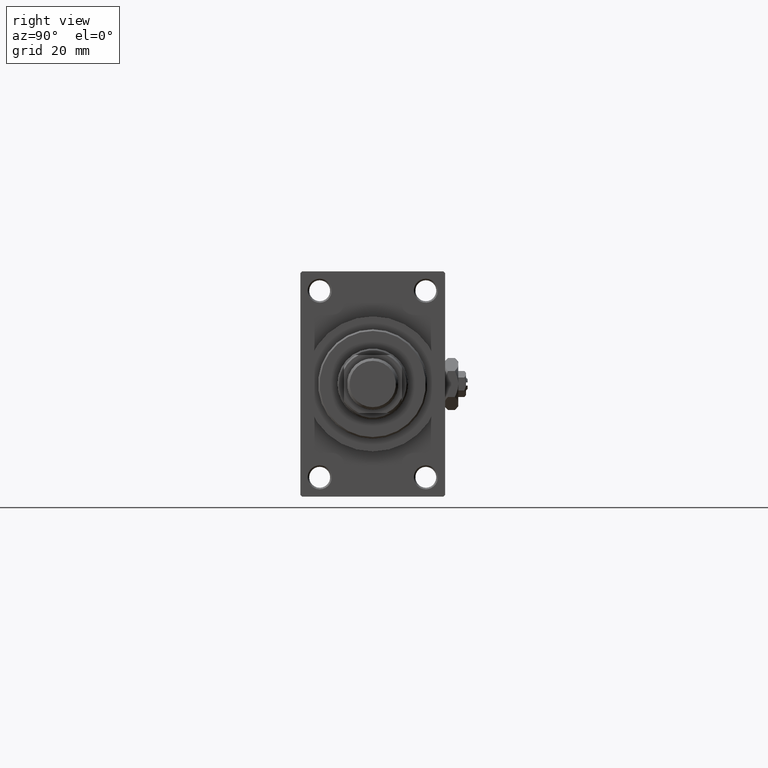
[diagram: clean part render]
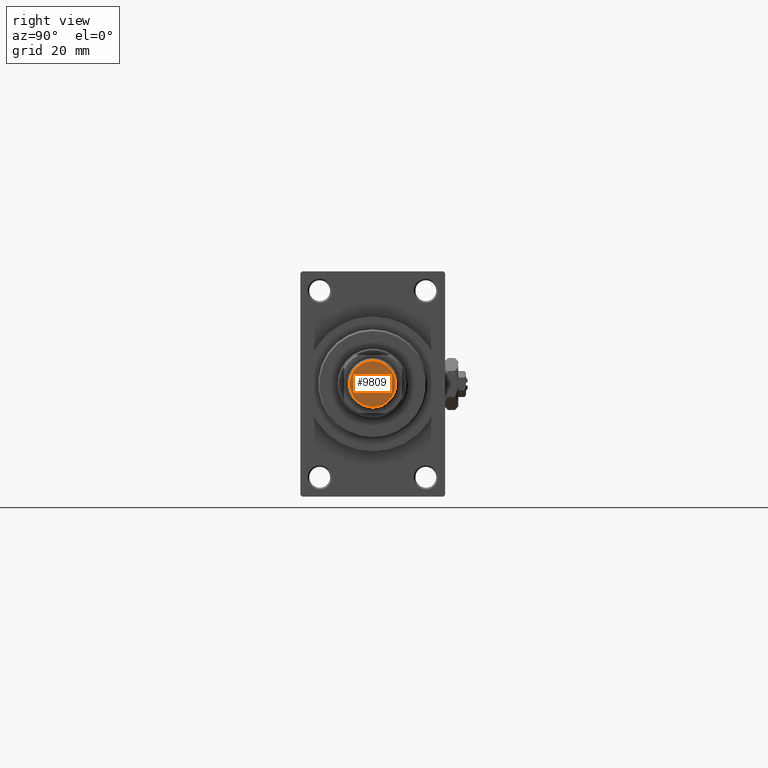
[diagram: same view with one face highlighted and labeled with its STEP entity id]
A machine part, right view. The second image highlights one B-rep face of the part: STEP entity #9809.
In plain terms, the highlighted planar face has unit normal (-1, 0, 0).
Its self-contained STEP definition (entity closure, byte-faithful):
#4118 = VERTEX_POINT ( 'NONE', #39213 ) ;
#6362 = PLANE ( 'NONE',  #34500 ) ;
#6532 = EDGE_CURVE ( 'NONE', #4118, #22604, #40807, .T. ) ;
#8521 = DIRECTION ( 'NONE',  ( 1.000000000000000000, 0.000000000000000000, 0.000000000000000000 ) ) ;
#9809 = ADVANCED_FACE ( 'NONE', ( #43448 ), #6362, .F. ) ;
#10120 = DIRECTION ( 'NONE',  ( 1.000000000000000000, 0.000000000000000000, -0.000000000000000000 ) ) ;
#10689 = AXIS2_PLACEMENT_3D ( 'NONE', #36374, #40391, #28606 ) ;
#12779 = AXIS2_PLACEMENT_3D ( 'NONE', #23809, #43092, #8521 ) ;
#14805 = ORIENTED_EDGE ( 'NONE', *, *, #6532, .T. ) ;
#17890 = CARTESIAN_POINT ( 'NONE',  ( 0.000000000000000000, 0.000000000000000000, 0.000000000000000000 ) ) ;
#19492 = EDGE_CURVE ( 'NONE', #22604, #4118, #39487, .T. ) ;
#22143 = ORIENTED_EDGE ( 'NONE', *, *, #19492, .T. ) ;
#22604 = VERTEX_POINT ( 'NONE', #41544 ) ;
#23809 = CARTESIAN_POINT ( 'NONE',  ( 0.000000000000000000, 0.000000000000000000, 0.000000000000000000 ) ) ;
#25169 = DIRECTION ( 'NONE',  ( 0.000000000000000000, 0.000000000000000000, 1.000000000000000000 ) ) ;
#28606 = DIRECTION ( 'NONE',  ( 1.000000000000000000, 0.000000000000000000, 0.000000000000000000 ) ) ;
#34500 = AXIS2_PLACEMENT_3D ( 'NONE', #17890, #25169, #10120 ) ;
#36374 = CARTESIAN_POINT ( 'NONE',  ( 0.000000000000000000, 0.000000000000000000, 0.000000000000000000 ) ) ;
#39213 = CARTESIAN_POINT ( 'NONE',  ( -7.199999999999987743, 9.307315673519877571E-16, 0.000000000000000000 ) ) ;
#39487 = CIRCLE ( 'NONE', #10689, 7.199999999999987743 ) ;
#40391 = DIRECTION ( 'NONE',  ( -0.000000000000000000, -0.000000000000000000, -1.000000000000000000 ) ) ;
#40807 = CIRCLE ( 'NONE', #12779, 7.199999999999987743 ) ;
#41544 = CARTESIAN_POINT ( 'NONE',  ( 7.199999999999987743, 0.000000000000000000, 0.000000000000000000 ) ) ;
#43092 = DIRECTION ( 'NONE',  ( -0.000000000000000000, -0.000000000000000000, -1.000000000000000000 ) ) ;
#43448 = FACE_OUTER_BOUND ( 'NONE', #44151, .T. ) ;
#44151 = EDGE_LOOP ( 'NONE', ( #22143, #14805 ) ) ;